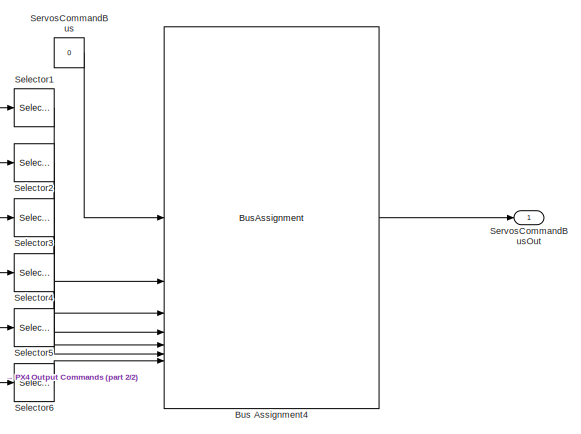
[diagram: root canvas - part 1/2, right side, full height]
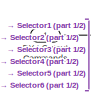
[diagram: root canvas - part 2/2, bottom left region]
MODEL slx_2d2e7dfaaa53
KIND model
BLOCK [BusAssignment] Bus Assignment4
  AssignedSignals = MotorCommandHexBus.cmdRotor1_nd,MotorCommandHexBus.cmdRotor2_nd,MotorCommandHexBus.cmdRotor3_nd,MotorCommandHexBus.cmdRotor4_nd,MotorCommandHexBus.cmdRotor5_nd,MotorCommandHexBus.cmdRotor6_nd
BLOCK [Inport] PX4 Output Commands
  PortDimensions = 16
BLOCK [Selector] Selector1
  IndexOptions = Index vector (dialog)
  Indices = 1
  InputPortWidth = 16
  OutputSizes = 1
BLOCK [Selector] Selector2
  IndexOptions = Index vector (dialog)
  Indices = 2
  InputPortWidth = 16
  OutputSizes = 1
BLOCK [Selector] Selector3
  IndexOptions = Index vector (dialog)
  Indices = 3
  InputPortWidth = 16
  OutputSizes = 1
BLOCK [Selector] Selector4
  IndexOptions = Index vector (dialog)
  Indices = 4
  InputPortWidth = 16
  OutputSizes = 1
BLOCK [Selector] Selector5
  IndexOptions = Index vector (dialog)
  Indices = 5
  InputPortWidth = 16
  OutputSizes = 1
BLOCK [Selector] Selector6
  IndexOptions = Index vector (dialog)
  Indices = 6
  InputPortWidth = 16
  OutputSizes = 1
BLOCK [Constant] ServosCommandBus
  OutDataTypeStr = Bus: ServosCommandBus
  Value = 0
BLOCK [Outport] ServosCommandBusOut
  OutDataTypeStr = Bus: ServosCommandBus
LINE Bus Assignment4:1 -> ServosCommandBusOut:1
NET PX4 Output Commands:1 -> Selector1:1, Selector2:1, Selector3:1, Selector4:1, Selector5:1, Selector6:1
LINE Selector1:1 -> Bus Assignment4:2
LINE Selector2:1 -> Bus Assignment4:3
LINE Selector3:1 -> Bus Assignment4:4
LINE Selector4:1 -> Bus Assignment4:5
LINE Selector5:1 -> Bus Assignment4:6
LINE Selector6:1 -> Bus Assignment4:7
LINE ServosCommandBus:1 -> Bus Assignment4:1
note: NET lines group one-source signal fan-out (src -> all destinations, sorted); 1:1 wires keep LINE
